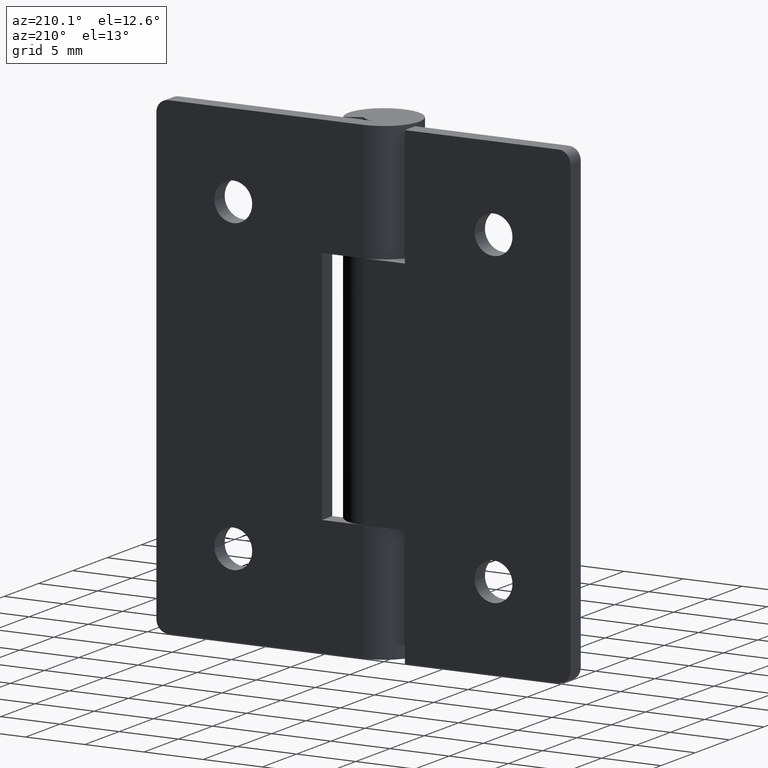
[diagram: clean part render]
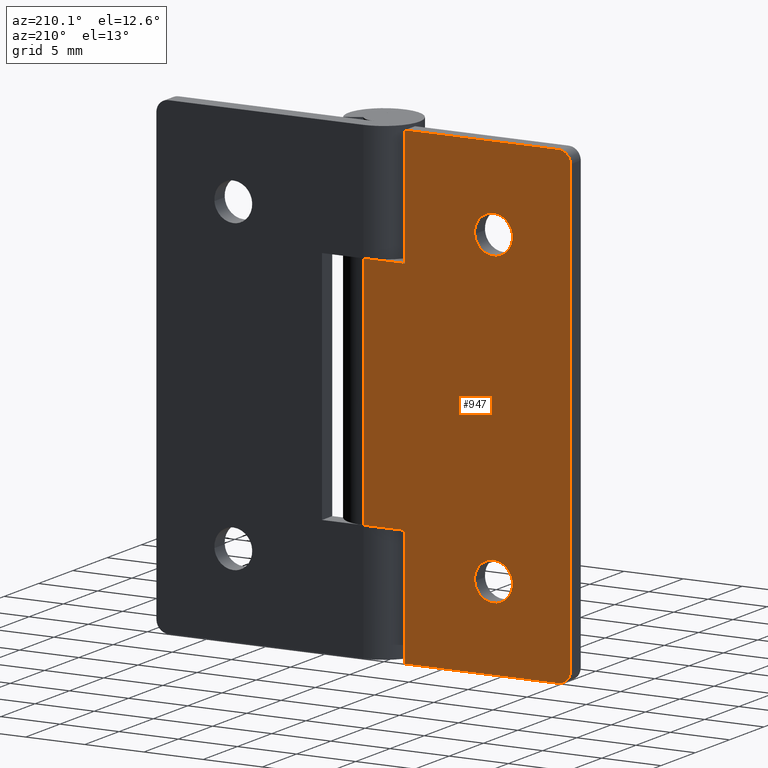
[diagram: same view with one face highlighted and labeled with its STEP entity id]
A machine part, auxiliary view. The second image highlights one B-rep face of the part: STEP entity #947.
In plain terms, the highlighted face is a freeform B-spline surface patch.
Its self-contained STEP definition (entity closure, byte-faithful):
#79=CARTESIAN_POINT('',(-12.595067733972201,3.0,7.125534553174797));
#80=VERTEX_POINT('',#79);
#86=CARTESIAN_POINT('',(-11.0,3.0,8.600000000000000));
#87=VERTEX_POINT('',#86);
#88=CARTESIAN_POINT('',(-11.0,3.0,8.600000000000000));
#89=CARTESIAN_POINT('',(-12.479024786634071,3.000000000000001,8.600000000000003));
#90=CARTESIAN_POINT('',(-12.595067733972201,3.000000000000000,7.125534553174798));
#98=(BOUNDED_CURVE()B_SPLINE_CURVE(2,(#88,#89,#90),.UNSPECIFIED.,.F.,.U.)B_SPLINE_CURVE_WITH_KNOTS((3,3),(0.0,0.236331300630565),.UNSPECIFIED.)CURVE()GEOMETRIC_REPRESENTATION_ITEM()RATIONAL_B_SPLINE_CURVE((1.0,0.723120658607776,0.969723356167220))REPRESENTATION_ITEM(''));
#99=EDGE_CURVE('',#87,#80,#98,.T.);
#101=CARTESIAN_POINT('',(-9.404932266027803,3.0,6.874465446825203));
#102=VERTEX_POINT('',#101);
#103=CARTESIAN_POINT('',(-9.404932266027803,3.0,6.874465446825203));
#104=CARTESIAN_POINT('',(-9.399999999999999,3.000000000000000,6.937135828777437));
#105=CARTESIAN_POINT('',(-9.399999999999999,3.0,7.0));
#106=CARTESIAN_POINT('',(-9.399999999999999,3.0,8.600000000000000));
#107=CARTESIAN_POINT('',(-11.0,3.0,8.600000000000000));
#115=(BOUNDED_CURVE()B_SPLINE_CURVE(2,(#103,#104,#105,#106,#107),.UNSPECIFIED.,.F.,.U.)B_SPLINE_CURVE_WITH_KNOTS((3,2,3),(0.736331300630565,0.750000000000000,1.0),.UNSPECIFIED.)CURVE()GEOMETRIC_REPRESENTATION_ITEM()RATIONAL_B_SPLINE_CURVE((0.969723356167220,0.983986122578771,1.0,0.707106781186548,1.0))REPRESENTATION_ITEM(''));
#116=EDGE_CURVE('',#102,#87,#115,.T.);
#192=CARTESIAN_POINT('',(-11.0,3.0,5.400000000000000));
#193=VERTEX_POINT('',#192);
#194=CARTESIAN_POINT('',(-11.0,3.0,5.400000000000000));
#195=CARTESIAN_POINT('',(-9.520975213365917,3.000000000000000,5.400000000000000));
#196=CARTESIAN_POINT('',(-9.404932266027803,3.0,6.874465446825203));
#204=(BOUNDED_CURVE()B_SPLINE_CURVE(2,(#194,#195,#196),.UNSPECIFIED.,.F.,.U.)B_SPLINE_CURVE_WITH_KNOTS((3,3),(0.500000000000000,0.736331300630566),.UNSPECIFIED.)CURVE()GEOMETRIC_REPRESENTATION_ITEM()RATIONAL_B_SPLINE_CURVE((1.0,0.723120658607776,0.969723356167222))REPRESENTATION_ITEM(''));
#205=EDGE_CURVE('',#193,#102,#204,.T.);
#207=CARTESIAN_POINT('',(-12.595067733972201,3.000000000000000,7.125534553174798));
#208=CARTESIAN_POINT('',(-12.599999999999994,3.000000000000001,7.062864171222563));
#209=CARTESIAN_POINT('',(-12.600000000000000,3.0,7.0));
#210=CARTESIAN_POINT('',(-12.599999999999996,3.0,5.400000000000000));
#211=CARTESIAN_POINT('',(-11.0,3.0,5.400000000000000));
#219=(BOUNDED_CURVE()B_SPLINE_CURVE(2,(#207,#208,#209,#210,#211),.UNSPECIFIED.,.F.,.U.)B_SPLINE_CURVE_WITH_KNOTS((3,2,3),(0.236331300630565,0.250000000000000,0.500000000000000),.UNSPECIFIED.)CURVE()GEOMETRIC_REPRESENTATION_ITEM()RATIONAL_B_SPLINE_CURVE((0.969723356167220,0.983986122578771,1.0,0.707106781186548,1.0))REPRESENTATION_ITEM(''));
#220=EDGE_CURVE('',#80,#193,#219,.T.);
#261=CARTESIAN_POINT('',(-12.595067733972201,3.0,33.125526553174687));
#262=VERTEX_POINT('',#261);
#268=CARTESIAN_POINT('',(-11.0,3.0,34.599991999999887));
#269=VERTEX_POINT('',#268);
#270=CARTESIAN_POINT('',(-11.0,3.0,34.599991999999887));
#271=CARTESIAN_POINT('',(-12.479024786634065,3.000000000000000,34.599991999999894));
#272=CARTESIAN_POINT('',(-12.595067733972197,3.000000000000000,33.125526553174694));
#280=(BOUNDED_CURVE()B_SPLINE_CURVE(2,(#270,#271,#272),.UNSPECIFIED.,.F.,.U.)B_SPLINE_CURVE_WITH_KNOTS((3,3),(0.0,0.236331300630564),.UNSPECIFIED.)CURVE()GEOMETRIC_REPRESENTATION_ITEM()RATIONAL_B_SPLINE_CURVE((1.0,0.723120658607778,0.969723356167218))REPRESENTATION_ITEM(''));
#281=EDGE_CURVE('',#269,#262,#280,.T.);
#283=CARTESIAN_POINT('',(-9.404932266027801,3.0,32.874457446825090));
#284=VERTEX_POINT('',#283);
#285=CARTESIAN_POINT('',(-9.404932266027801,2.999999999999999,32.874457446825090));
#286=CARTESIAN_POINT('',(-9.399999999999999,3.000000000000000,32.937127828777328));
#287=CARTESIAN_POINT('',(-9.399999999999999,3.0,32.999991999999892));
#288=CARTESIAN_POINT('',(-9.399999999999999,3.0,34.599991999999887));
#289=CARTESIAN_POINT('',(-11.0,3.0,34.599991999999887));
#297=(BOUNDED_CURVE()B_SPLINE_CURVE(2,(#285,#286,#287,#288,#289),.UNSPECIFIED.,.F.,.U.)B_SPLINE_CURVE_WITH_KNOTS((3,2,3),(0.736331300630565,0.750000000000000,1.0),.UNSPECIFIED.)CURVE()GEOMETRIC_REPRESENTATION_ITEM()RATIONAL_B_SPLINE_CURVE((0.969723356167219,0.983986122578770,1.0,0.707106781186548,1.0))REPRESENTATION_ITEM(''));
#298=EDGE_CURVE('',#284,#269,#297,.T.);
#374=CARTESIAN_POINT('',(-11.0,3.0,31.399991999999902));
#375=VERTEX_POINT('',#374);
#376=CARTESIAN_POINT('',(-11.0,3.0,31.399991999999902));
#377=CARTESIAN_POINT('',(-9.520975213365917,3.000000000000000,31.399991999999902));
#378=CARTESIAN_POINT('',(-9.404932266027801,3.0,32.874457446825090));
#386=(BOUNDED_CURVE()B_SPLINE_CURVE(2,(#376,#377,#378),.UNSPECIFIED.,.F.,.U.)B_SPLINE_CURVE_WITH_KNOTS((3,3),(0.500000000000000,0.736331300630566),.UNSPECIFIED.)CURVE()GEOMETRIC_REPRESENTATION_ITEM()RATIONAL_B_SPLINE_CURVE((1.0,0.723120658607776,0.969723356167222))REPRESENTATION_ITEM(''));
#387=EDGE_CURVE('',#375,#284,#386,.T.);
#389=CARTESIAN_POINT('',(-12.595067733972197,3.000000000000000,33.125526553174694));
#390=CARTESIAN_POINT('',(-12.599999999999998,3.000000000000000,33.062856171222471));
#391=CARTESIAN_POINT('',(-12.600000000000000,3.0,32.999991999999892));
#392=CARTESIAN_POINT('',(-12.599999999999996,3.0,31.399991999999898));
#393=CARTESIAN_POINT('',(-11.0,3.0,31.399991999999902));
#401=(BOUNDED_CURVE()B_SPLINE_CURVE(2,(#389,#390,#391,#392,#393),.UNSPECIFIED.,.F.,.U.)B_SPLINE_CURVE_WITH_KNOTS((3,2,3),(0.236331300630564,0.250000000000000,0.500000000000000),.UNSPECIFIED.)CURVE()GEOMETRIC_REPRESENTATION_ITEM()RATIONAL_B_SPLINE_CURVE((0.969723356167218,0.983986122578770,1.0,0.707106781186548,1.0))REPRESENTATION_ITEM(''));
#402=EDGE_CURVE('',#262,#375,#401,.T.);
#439=CARTESIAN_POINT('',(-16.500000000000000,3.0,40.0));
#440=VERTEX_POINT('',#439);
#446=CARTESIAN_POINT('',(-17.500000000000000,3.0,39.0));
#447=VERTEX_POINT('',#446);
#448=CARTESIAN_POINT('',(-17.500000000000000,3.0,39.0));
#449=CARTESIAN_POINT('',(-17.499999999999996,3.0,39.999999999999993));
#450=CARTESIAN_POINT('',(-16.500000000000000,3.0,40.0));
#458=(BOUNDED_CURVE()B_SPLINE_CURVE(2,(#448,#449,#450),.UNSPECIFIED.,.F.,.U.)CURVE()GEOMETRIC_REPRESENTATION_ITEM()QUASI_UNIFORM_CURVE()RATIONAL_B_SPLINE_CURVE((1.0,0.707106781186548,1.0))REPRESENTATION_ITEM(''));
#459=EDGE_CURVE('',#447,#440,#458,.T.);
#500=CARTESIAN_POINT('',(-17.500000000000000,3.0,1.0));
#501=VERTEX_POINT('',#500);
#507=CARTESIAN_POINT('',(-16.500000000000000,3.0,0.0));
#508=VERTEX_POINT('',#507);
#509=CARTESIAN_POINT('',(-16.500000000000000,3.0,0.0));
#510=CARTESIAN_POINT('',(-17.499999999999996,3.0,0.0));
#511=CARTESIAN_POINT('',(-17.500000000000000,3.0,1.0));
#519=(BOUNDED_CURVE()B_SPLINE_CURVE(2,(#509,#510,#511),.UNSPECIFIED.,.F.,.U.)CURVE()GEOMETRIC_REPRESENTATION_ITEM()QUASI_UNIFORM_CURVE()RATIONAL_B_SPLINE_CURVE((1.0,0.707106781186548,1.0))REPRESENTATION_ITEM(''));
#520=EDGE_CURVE('',#508,#501,#519,.T.);
#537=CARTESIAN_POINT('',(0.0,3.0,10.000007999999999));
#538=VERTEX_POINT('',#537);
#593=CARTESIAN_POINT('',(-3.500000000000000,3.0,10.000007999999999));
#594=VERTEX_POINT('',#593);
#600=CARTESIAN_POINT('',(-3.500000000000000,3.0,10.000007999999999));
#601=CARTESIAN_POINT('',(0.0,3.0,10.000007999999999));
#602=QUASI_UNIFORM_CURVE('',1,(#600,#601),.UNSPECIFIED.,.F.,.U.);
#603=EDGE_CURVE('',#594,#538,#602,.T.);
#615=CARTESIAN_POINT('',(-3.500000000000000,3.0,0.0));
#616=VERTEX_POINT('',#615);
#622=CARTESIAN_POINT('',(-3.500000000000000,3.0,0.0));
#623=CARTESIAN_POINT('',(-3.500000000000000,3.0,10.000007999999999));
#624=QUASI_UNIFORM_CURVE('',1,(#622,#623),.UNSPECIFIED.,.F.,.U.);
#625=EDGE_CURVE('',#616,#594,#624,.T.);
#641=CARTESIAN_POINT('',(-3.500000000000000,3.0,29.999991999999999));
#642=VERTEX_POINT('',#641);
#643=CARTESIAN_POINT('',(0.0,3.0,29.999991999999999));
#644=VERTEX_POINT('',#643);
#645=CARTESIAN_POINT('',(-3.500000000000000,3.0,29.999991999999999));
#646=CARTESIAN_POINT('',(0.0,3.0,29.999991999999999));
#647=QUASI_UNIFORM_CURVE('',1,(#645,#646),.UNSPECIFIED.,.F.,.U.);
#648=EDGE_CURVE('',#642,#644,#647,.T.);
#720=CARTESIAN_POINT('',(-3.500000000000000,3.0,40.0));
#721=VERTEX_POINT('',#720);
#722=CARTESIAN_POINT('',(-3.500000000000000,3.0,40.0));
#723=CARTESIAN_POINT('',(-3.500000000000000,3.0,29.999991999999999));
#724=QUASI_UNIFORM_CURVE('',1,(#722,#723),.UNSPECIFIED.,.F.,.U.);
#725=EDGE_CURVE('',#721,#642,#724,.T.);
#747=CARTESIAN_POINT('',(-17.500000000000000,3.0,39.0));
#748=CARTESIAN_POINT('',(-17.500000000000000,3.0,1.0));
#749=QUASI_UNIFORM_CURVE('',1,(#747,#748),.UNSPECIFIED.,.F.,.U.);
#750=EDGE_CURVE('',#447,#501,#749,.T.);
#767=CARTESIAN_POINT('',(-16.500000000000000,3.0,40.0));
#768=CARTESIAN_POINT('',(-3.500000000000000,3.0,40.0));
#769=QUASI_UNIFORM_CURVE('',1,(#767,#768),.UNSPECIFIED.,.F.,.U.);
#770=EDGE_CURVE('',#440,#721,#769,.T.);
#793=CARTESIAN_POINT('',(-16.500000000000000,3.0,0.0));
#794=CARTESIAN_POINT('',(-3.500000000000000,3.0,0.0));
#795=QUASI_UNIFORM_CURVE('',1,(#793,#794),.UNSPECIFIED.,.F.,.U.);
#796=EDGE_CURVE('',#508,#616,#795,.T.);
#878=CARTESIAN_POINT('',(0.0,3.0,29.999991999999999));
#879=CARTESIAN_POINT('',(0.0,3.0,10.000007999999999));
#880=QUASI_UNIFORM_CURVE('',1,(#878,#879),.UNSPECIFIED.,.F.,.U.);
#881=EDGE_CURVE('',#644,#538,#880,.T.);
#918=CARTESIAN_POINT('',(-18.374124966081599,3.0,-1.997999922472239));
#919=CARTESIAN_POINT('',(-18.374124966081599,3.0,41.998000995355838));
#920=CARTESIAN_POINT('',(0.874125435468182,3.0,-1.997999922472239));
#921=CARTESIAN_POINT('',(0.874125435468182,3.0,41.998000995355838));
#922=B_SPLINE_SURFACE_WITH_KNOTS('',1,1,((#918,#920),(#919,#921)),.UNSPECIFIED.,.F.,.F.,.U.,(2,2),(2,2),(0.0,43.996000917828077),(0.0,19.248250401549790),.UNSPECIFIED.);
#923=ORIENTED_EDGE('',*,*,#796,.F.);
#924=ORIENTED_EDGE('',*,*,#520,.T.);
#925=ORIENTED_EDGE('',*,*,#750,.F.);
#926=ORIENTED_EDGE('',*,*,#459,.T.);
#927=ORIENTED_EDGE('',*,*,#770,.T.);
#928=ORIENTED_EDGE('',*,*,#725,.T.);
#929=ORIENTED_EDGE('',*,*,#648,.T.);
#930=ORIENTED_EDGE('',*,*,#881,.T.);
#931=ORIENTED_EDGE('',*,*,#603,.F.);
#932=ORIENTED_EDGE('',*,*,#625,.F.);
#933=EDGE_LOOP('',(#923,#924,#925,#926,#927,#928,#929,#930,#931,#932));
#934=FACE_OUTER_BOUND('',#933,.T.);
#935=ORIENTED_EDGE('',*,*,#387,.T.);
#936=ORIENTED_EDGE('',*,*,#298,.T.);
#937=ORIENTED_EDGE('',*,*,#281,.T.);
#938=ORIENTED_EDGE('',*,*,#402,.T.);
#939=EDGE_LOOP('',(#935,#936,#937,#938));
#940=FACE_BOUND('',#939,.T.);
#941=ORIENTED_EDGE('',*,*,#205,.T.);
#942=ORIENTED_EDGE('',*,*,#116,.T.);
#943=ORIENTED_EDGE('',*,*,#99,.T.);
#944=ORIENTED_EDGE('',*,*,#220,.T.);
#945=EDGE_LOOP('',(#941,#942,#943,#944));
#946=FACE_BOUND('',#945,.T.);
#947=ADVANCED_FACE('',(#934,#940,#946),#922,.T.);